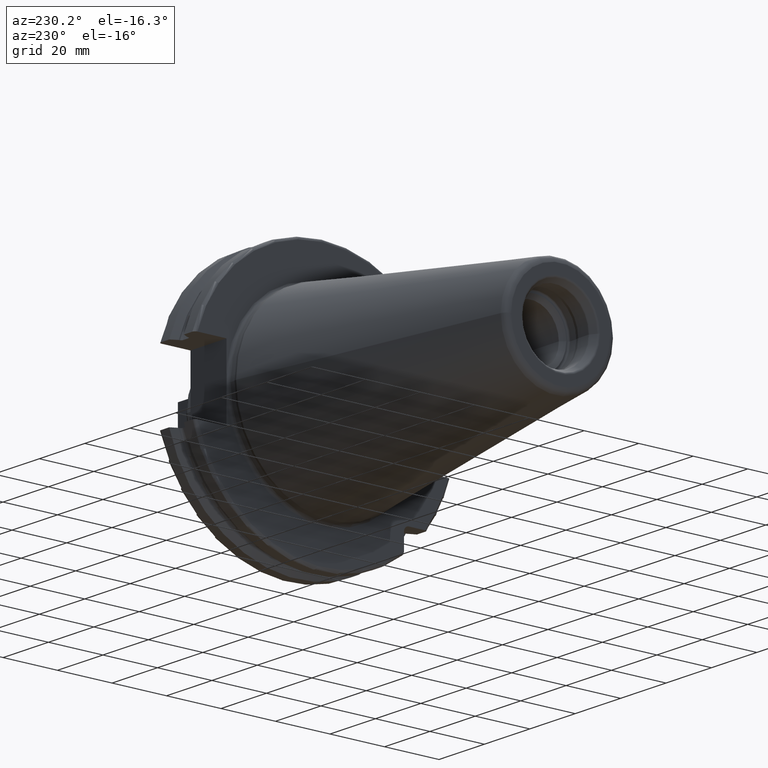
[diagram: clean part render]
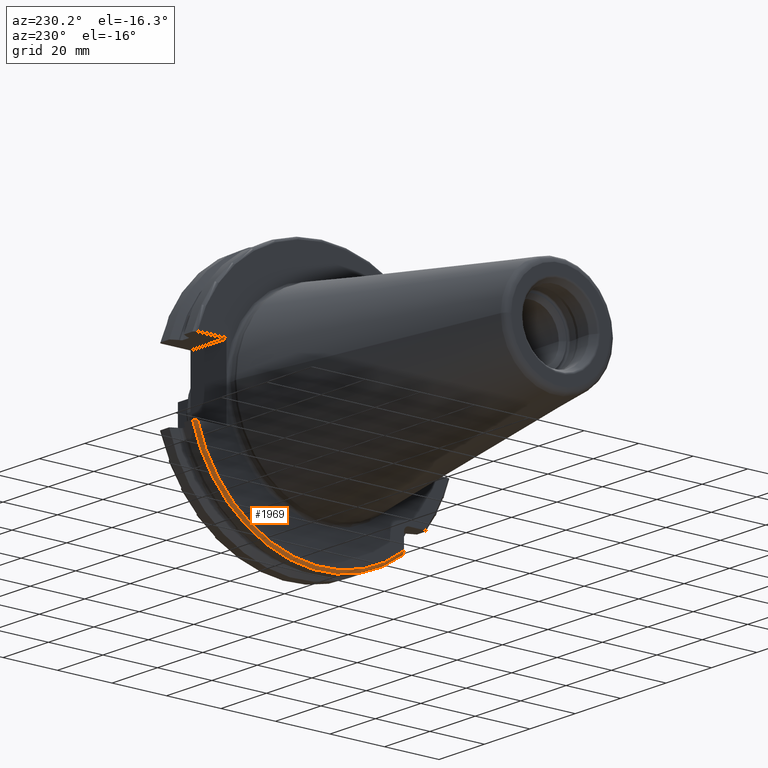
[diagram: same view with one face highlighted and labeled with its STEP entity id]
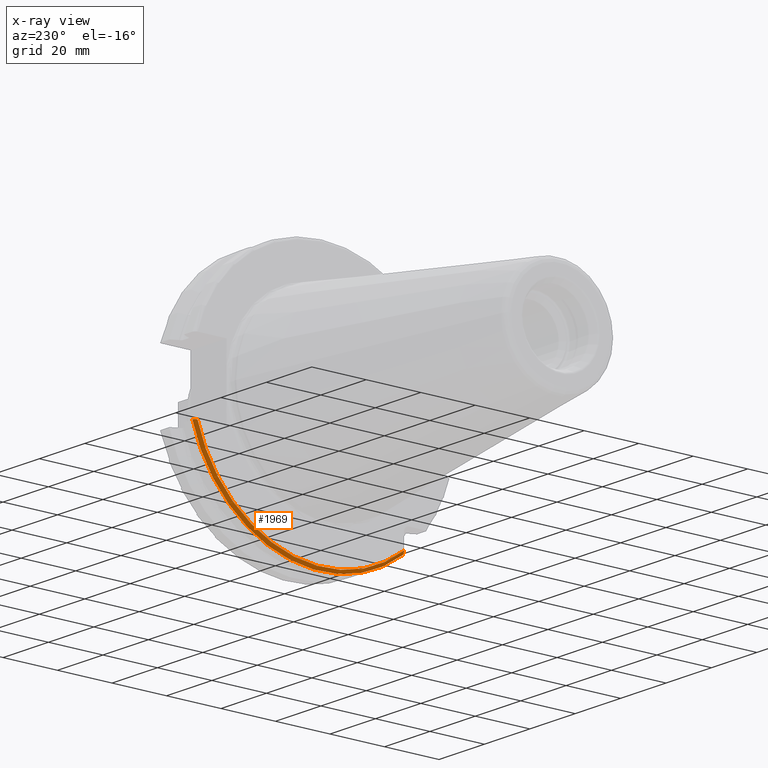
[diagram: x-ray of the same camera — body ghosted, the highlighted face saturated]
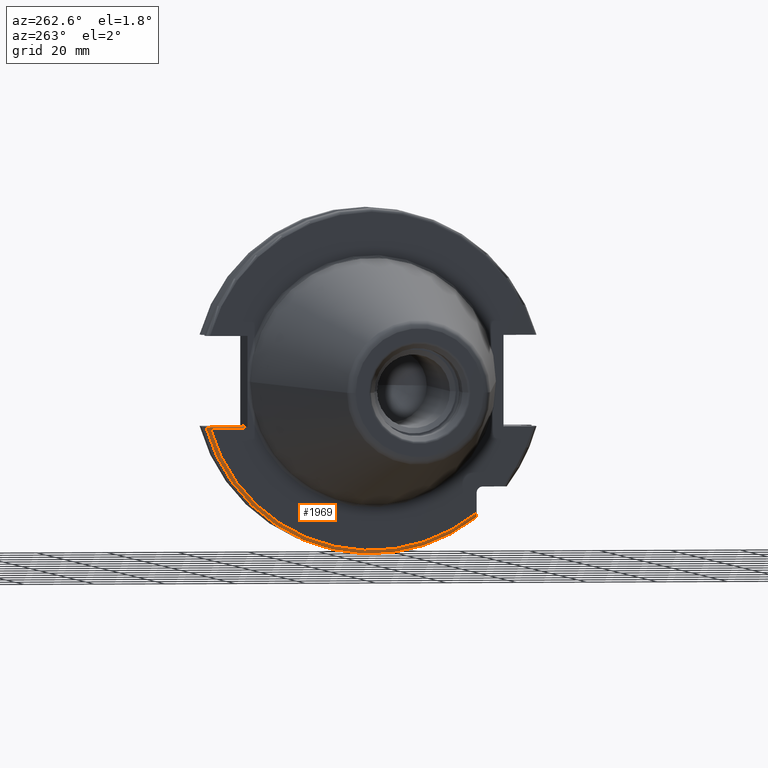
[diagram: same view with one face highlighted and labeled with its STEP entity id]
A machine part, auxiliary view. The second image highlights one B-rep face of the part: STEP entity #1969.
The next image is the same camera in x-ray: the body ghosted, the highlighted face saturated — about 0% of this face is hidden behind the body in this view.
A second angle (auxiliary view) of the same face is appended — the face is thin or edge-on in the first view.
In plain terms, the highlighted toroidal blend (fillet) surface has major radius 47.7375 mm and minor (blend) radius 1 mm.
Its self-contained STEP definition (entity closure, byte-faithful):
#190=CARTESIAN_POINT('',(3.2E0,0.E0,0.E0));
#191=DIRECTION('',(-1.E0,0.E0,0.E0));
#192=DIRECTION('',(0.E0,9.627964123359E-1,-2.702278083268E-1));
#193=AXIS2_PLACEMENT_3D('',#190,#191,#192);
#237=CARTESIAN_POINT('',(3.2E0,4.596149373389E1,-1.29E1));
#238=CARTESIAN_POINT('',(3.2E0,4.604026443227E1,-1.29E1));
#239=CARTESIAN_POINT('',(3.216813255287E0,4.619328239852E1,-1.29E1));
#240=CARTESIAN_POINT('',(3.290538328370E0,4.641376542139E1,-1.29E1));
#241=CARTESIAN_POINT('',(3.409705660893E0,4.661163928454E1,-1.29E1));
#242=CARTESIAN_POINT('',(3.568375595419E0,4.677744698912E1,-1.29E1));
#243=CARTESIAN_POINT('',(3.759602935675E0,4.690321007119E1,-1.29E1));
#244=CARTESIAN_POINT('',(3.974378910530E0,4.698149887214E1,-1.29E1));
#245=CARTESIAN_POINT('',(4.123284460641E0,4.699929686974E1,-1.29E1));
#246=CARTESIAN_POINT('',(4.2E0,4.699929686974E1,-1.29E1));
#248=CARTESIAN_POINT('',(4.2E0,-2.985E1,-3.852689198793E1));
#249=CARTESIAN_POINT('',(4.121351701574E0,-2.985E1,-3.852689198793E1));
#250=CARTESIAN_POINT('',(3.966904735014E0,-2.985E1,-3.850408165447E1));
#251=CARTESIAN_POINT('',(3.738653969764E0,-2.985E1,-3.839864952437E1));
#252=CARTESIAN_POINT('',(3.529185168070E0,-2.985E1,-3.821837887996E1));
#253=CARTESIAN_POINT('',(3.352580918325E0,-2.985E1,-3.796237987635E1));
#254=CARTESIAN_POINT('',(3.229812788304E0,-2.985E1,-3.762998844337E1));
#255=CARTESIAN_POINT('',(3.2E0,-2.985E1,-3.738468079689E1));
#256=CARTESIAN_POINT('',(3.2E0,-2.985E1,-3.725381062724E1));
#258=CARTESIAN_POINT('',(4.2E0,0.E0,0.E0));
#259=DIRECTION('',(-1.E0,0.E0,0.E0));
#260=DIRECTION('',(0.E0,9.643354064066E-1,-2.646832521159E-1));
#261=AXIS2_PLACEMENT_3D('',#258,#259,#260);
#1496=CARTESIAN_POINT('',(3.2E0,4.596149373389E1,-1.29E1));
#1497=VERTEX_POINT('',#1496);
#1506=CARTESIAN_POINT('',(4.2E0,4.699929686974E1,-1.29E1));
#1507=VERTEX_POINT('',#1506);
#1535=CARTESIAN_POINT('',(4.2E0,-2.985E1,-3.852689198793E1));
#1536=VERTEX_POINT('',#1535);
#1537=CARTESIAN_POINT('',(3.2E0,-2.985E1,-3.725381062724E1));
#1538=VERTEX_POINT('',#1537);
#1956=CARTESIAN_POINT('',(4.2E0,0.E0,0.E0));
#1957=DIRECTION('',(1.E0,0.E0,0.E0));
#1958=DIRECTION('',(0.E0,-1.E0,0.E0));
#1959=AXIS2_PLACEMENT_3D('',#1956,#1957,#1958);
#1960=TOROIDAL_SURFACE('',#1959,4.77375E1,1.E0);
#1962=ORIENTED_EDGE('',*,*,#1961,.F.);
#1963=ORIENTED_EDGE('',*,*,#1899,.T.);
#1964=ORIENTED_EDGE('',*,*,#1869,.F.);
#1966=ORIENTED_EDGE('',*,*,#1965,.F.);
#1967=EDGE_LOOP('',(#1962,#1963,#1964,#1966));
#1968=FACE_OUTER_BOUND('',#1967,.F.);
#1969=ADVANCED_FACE('',(#1968),#1960,.T.);
#194=CIRCLE('',#193,4.77375E1);
#247=B_SPLINE_CURVE_WITH_KNOTS('',3,(#237,#238,#239,#240,#241,#242,#243,#244,
#245,#246),.UNSPECIFIED.,.F.,.F.,(4,1,1,1,1,1,1,4),(0.E0,1.428571428571E-1,
2.857142857143E-1,4.285714285714E-1,5.714285714286E-1,7.142857142857E-1,
8.571428571429E-1,1.E0),.UNSPECIFIED.);
#257=B_SPLINE_CURVE_WITH_KNOTS('',3,(#248,#249,#250,#251,#252,#253,#254,#255,
#256),.UNSPECIFIED.,.F.,.F.,(4,1,1,1,1,1,4),(0.E0,1.666666666667E-1,
3.333333333333E-1,5.E-1,6.666666666667E-1,8.333333333333E-1,1.E0),
.UNSPECIFIED.);
#262=CIRCLE('',#261,4.87375E1);
#1869=EDGE_CURVE('',#1536,#1538,#257,.T.);
#1899=EDGE_CURVE('',#1497,#1538,#194,.T.);
#1961=EDGE_CURVE('',#1497,#1507,#247,.T.);
#1965=EDGE_CURVE('',#1507,#1536,#262,.T.);